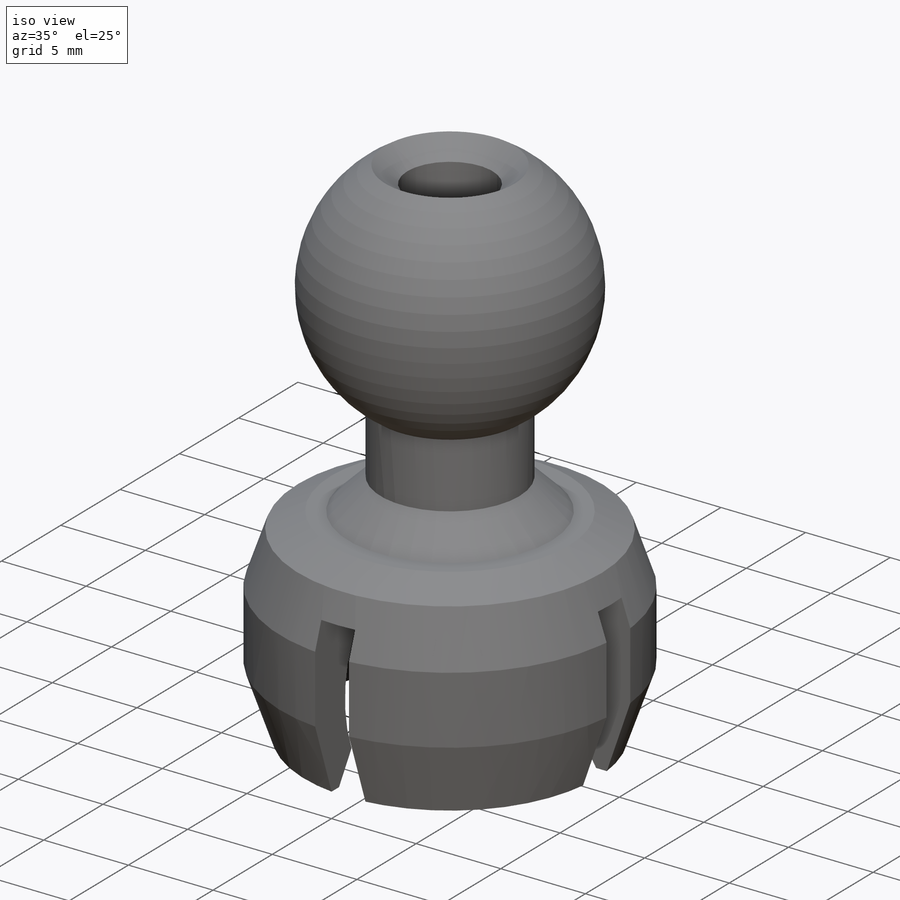
[diagram: iso view]
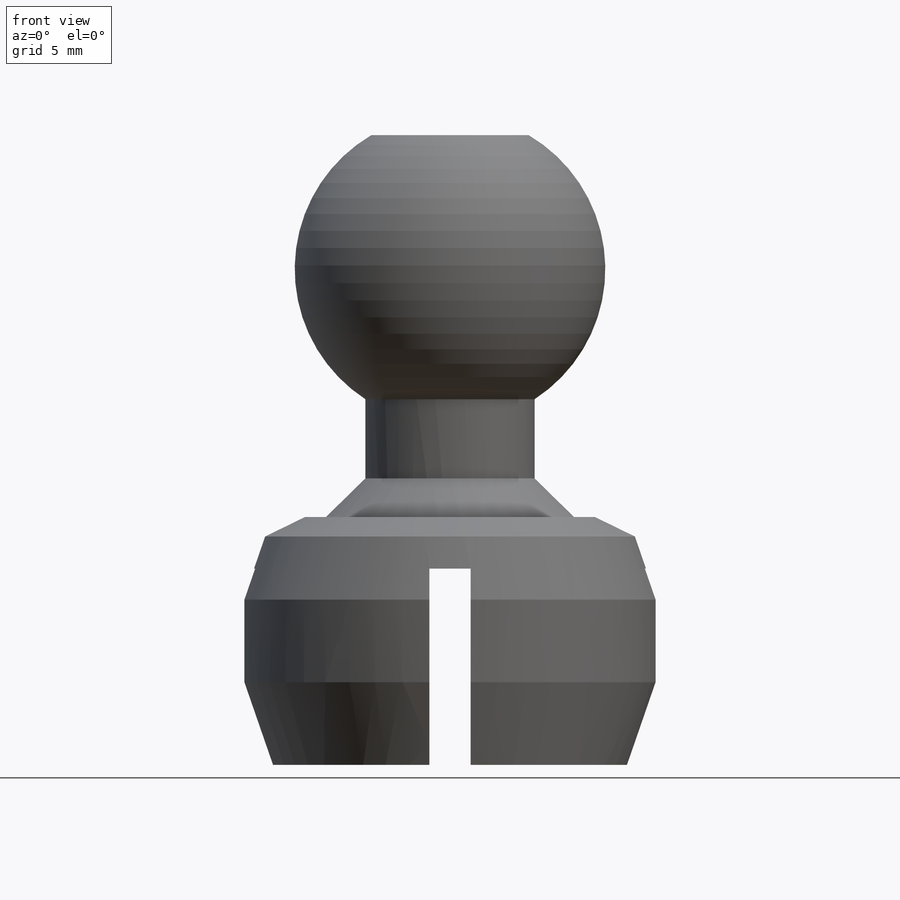
[diagram: front view]
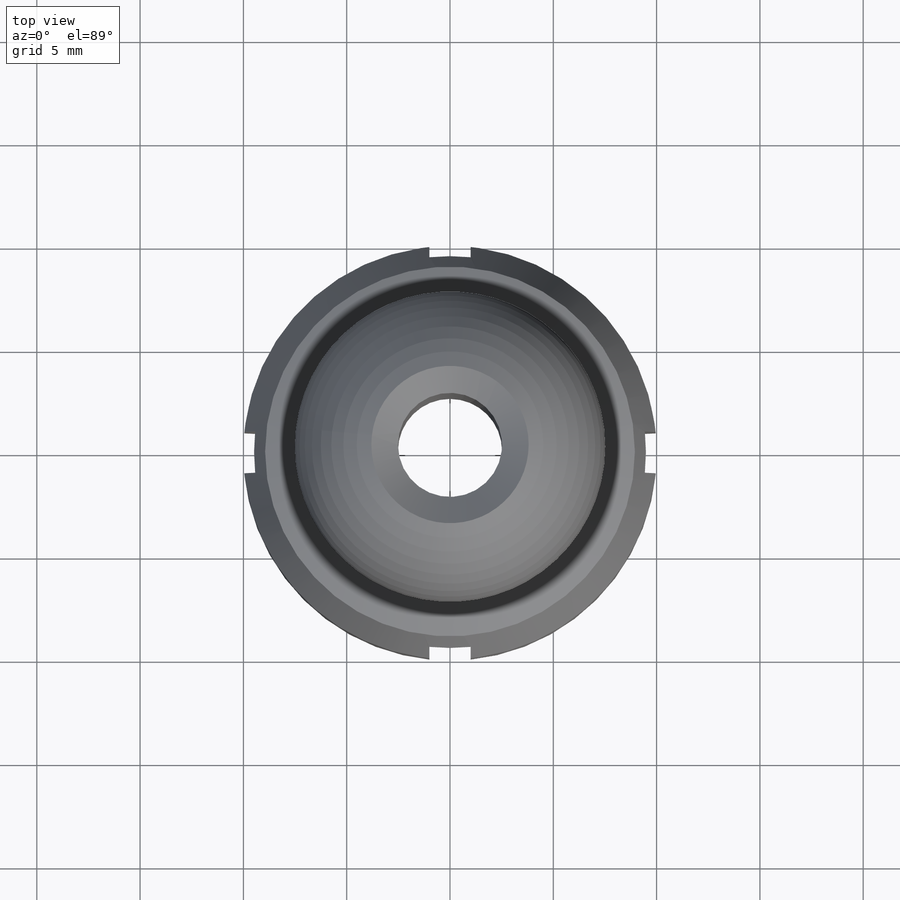
[diagram: top view]
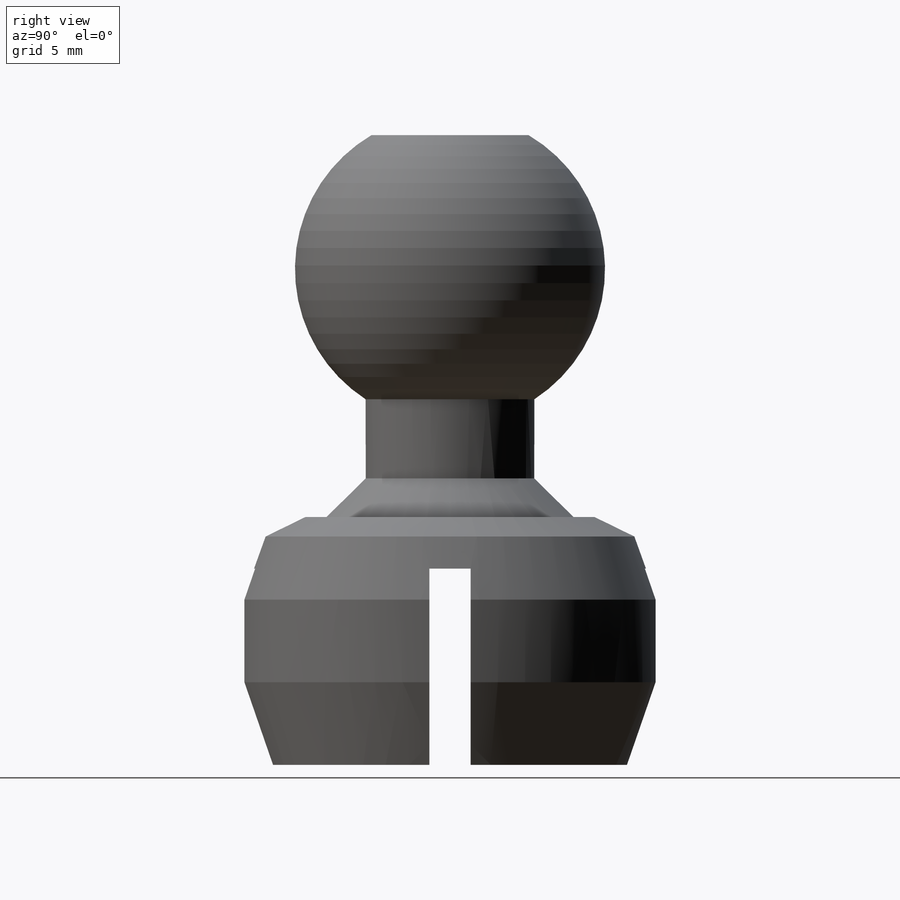
[diagram: right view]
SOLIDWORKS PART (.sldprt)
format: sldprt  version: not decoded by parser v0  size: 277,504 bytes
history: native  units: mm
features: chamfer x5, plane x3, sketch x2, material x1, revolve x1, cut_extrude x1 (+13 scaffold rows collapsed)
feature tree (26):
  scaffold x13  (default folders/planes/origin — collapsed)
  material  "Material <nicht festgelegt>"
  plane  "Ebene vorne"
  plane  "Ebene oben"
  plane  "Ebene rechts"
  sketch  "Skizze1"  dims[D1=3.0mm]
  revolve  "Rotation1"  Angle=360deg
  chamfer  "Fase1"  Distance=2mm Angle=58deg
  chamfer  "Fase2"  Distance=4mm Angle=19deg
  chamfer  "Fase3"  Distance=4mm Angle=19deg
  sketch  "Skizze2"  dims[D1=1.0mm]
  cut_extrude  "Schnitt-Linear austragen1"  Depth=9.5mm
  chamfer  "Fase4"  Distance=1mm Angle=45deg
  chamfer  "Fase5"  Distance=1.5mm Angle=58deg
decode coverage: 9 of 9 modeling features carry decoded parameters
note: suppression state not decoded; provenance and decode notes live in map.json
